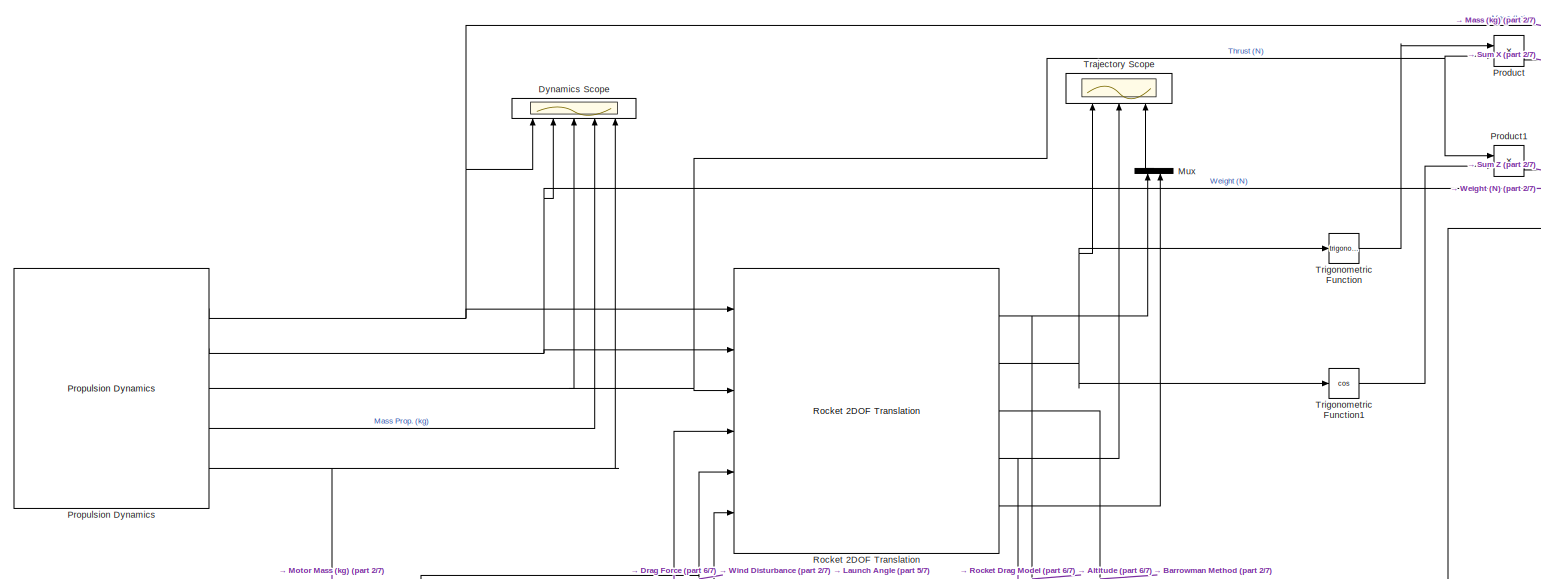
[diagram: root canvas - part 1/7, top center region]
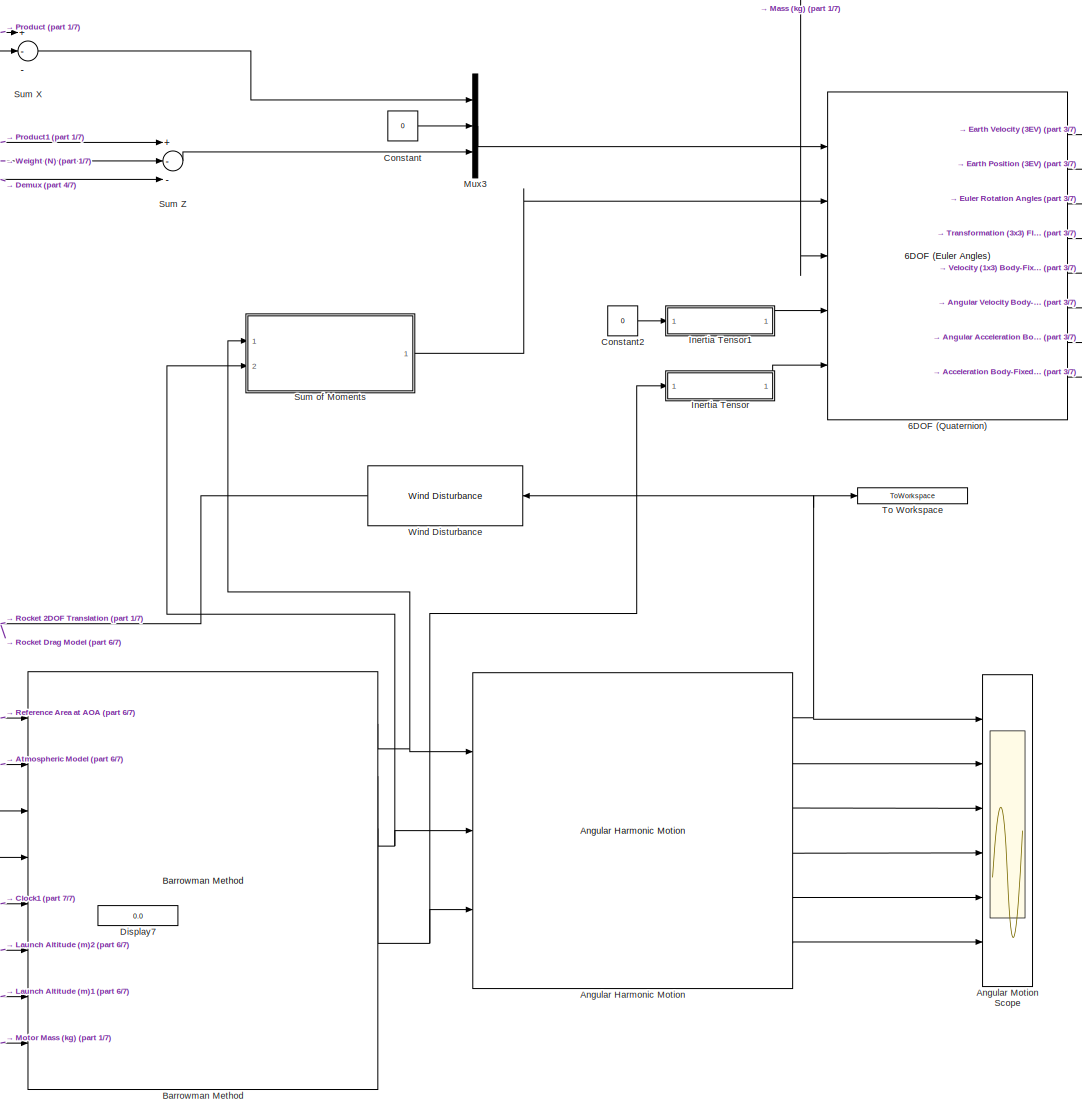
[diagram: root canvas - part 2/7, right side, full height]
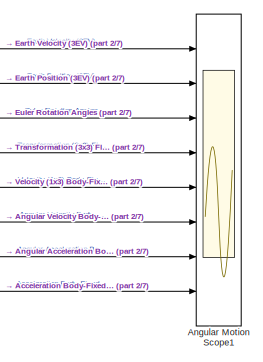
[diagram: root canvas - part 3/7, top right region]
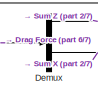
[diagram: root canvas - part 4/7, top center region]
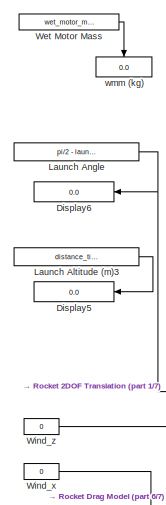
[diagram: root canvas - part 5/7, middle left region]
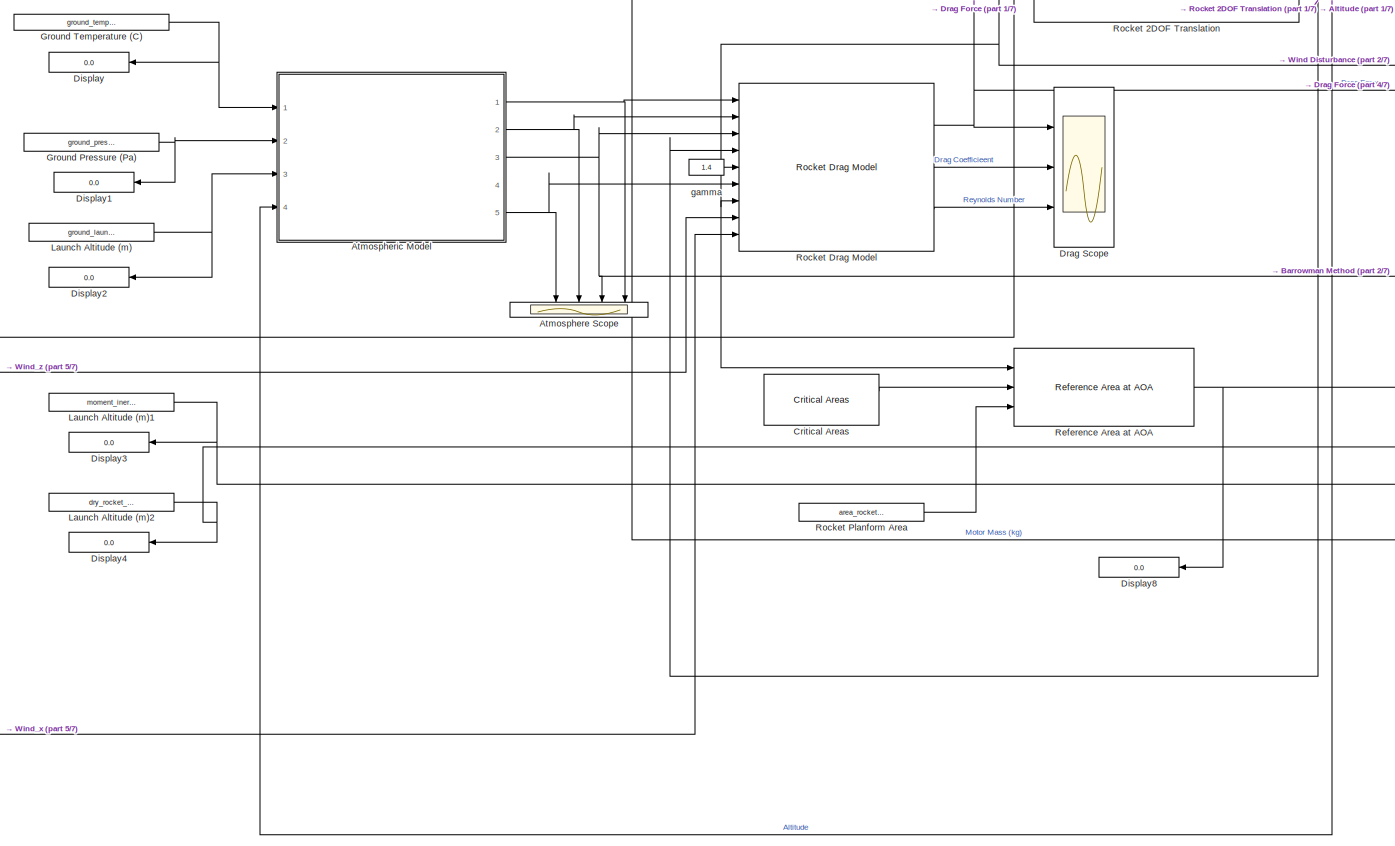
[diagram: root canvas - part 6/7, bottom left region]
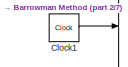
[diagram: root canvas - part 7/7, bottom center region]
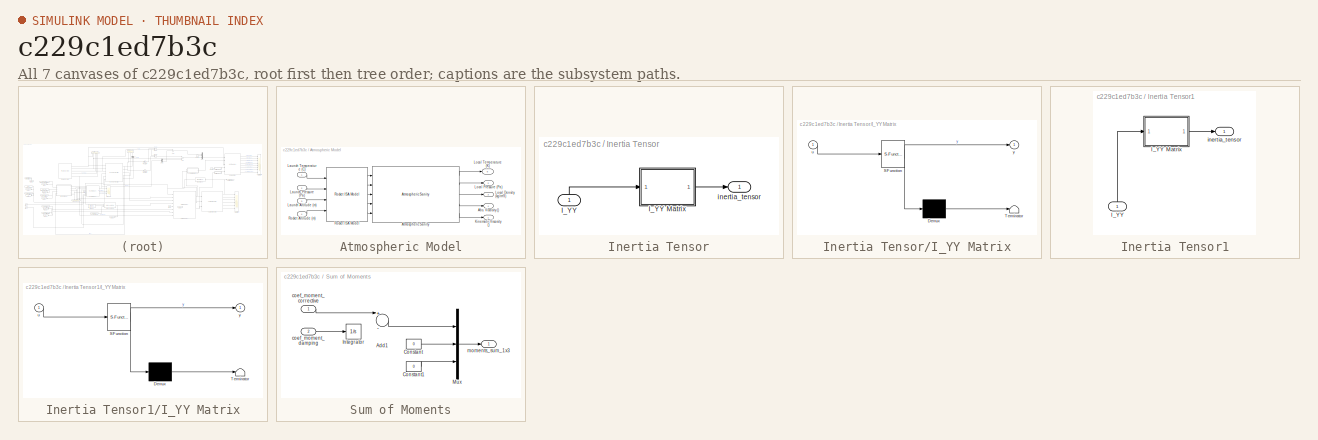
[diagram: thumbnail index - all 7 canvases of the model, root first then tree order]
MODEL slx_c229c1ed7b3c
KIND model
CONFIG AbsTol = auto
CONFIG FixedStep = 0.01
CONFIG MaxStep = auto
CONFIG MinStep = 0.01
CONFIG RelTol = 1e-3
CONFIG SampleTimeConstraint = Unconstrained
CONFIG Solver = ode3
CONFIG SolverMode = Auto
CONFIG SolverName = ode3
CONFIG StartTime = 0.0
CONFIG StopTime = 25
BLOCK [Constant]  Launch Angle
  Value = pi/2 - launch_angle
BLOCK [Reference] 6DOF (Quaternion)  REF=aerolib6dof2/6DOF (Euler Angles)
  Ports = [5, 8]
  SourceBlock = aerolib6dof2/6DOF (Euler Angles)
  SourceType = 6DOF EoM (Body Axis)
  Vm_0 = [0 0 0]
  eul_0 = [0 0.15708 0]
  inertia = eye(3)
  inertia_e = eye(3)
  inertia_f = 2*eye(3)
  k_quat = 1.0
  mass_0 = 1.0
  mass_e = 0.5
  mass_f = 2.0
  mtype = Custom Variable
  pm_0 = [0 0 0]
  rep = Quaternion
  units = Metric (MKS)
  vre_flag = off
  xme_0 = [0 0 0]
BLOCK [Reference] Angular Harmonic Motion  REF=rocket_angular_flight_library/Angular Harmonic Motion
  Ports = [3, 6]
  SourceBlock = rocket_angular_flight_library/Angular Harmonic Motion
  SourceType = SubSystem
BLOCK [Scope] Angular Motion Scope
  DataFormat = StructureWithTime
  Floating = off
  NumInputPorts = 6
  Ports = [6]
  SampleTime = 0
  SaveName = ScopeData5
  ShowLegends = off
  TimeRange = 10
  YMax = 0.0025~0.0125~0.06~0.0678327~7.7~1.125
  YMin = -0.003~-0.0075~-0.04~0.067832~6.4~1.07
BLOCK [Scope] Angular Motion Scope1
  DataFormat = StructureWithTime
  Floating = off
  NumInputPorts = 8
  Ports = [8]
  SampleTime = 0
  SaveName = ScopeData6
  ShowLegends = off
  TimeRange = 10
  YMax = 0.0025~130~0.06~0.0678327~7.7~1.125~5~5
  YMin = -0.003~-1~-0.04~0.067832~6.4~1.07~-5~-5
BLOCK [Scope] Atmosphere Scope
  DataFormat = StructureWithTime
  Floating = off
  NumInputPorts = 5
  Ports = [5]
  SampleTime = 0
  SaveName = ScopeData4
  ShowLegends = off
  YMax = 1~31.5~106391~12.355~-1.01773e-07
  YMin = -1~28.5~96258.8~11.1784~-1.12485e-07
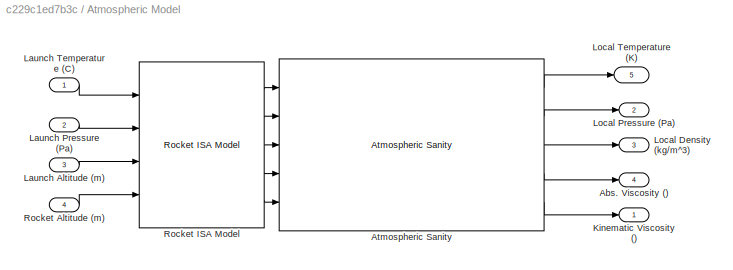
BLOCK [SubSystem] Atmospheric Model
  Ports = [4, 5]
  RequestExecContextInheritance = off
BLOCK [Outport] Atmospheric Model/Abs. Viscosity ()
  IconDisplay = Port number
  Port = 4
BLOCK [Reference] Atmospheric Model/Atmospheric Sanity  REF=rocket_isa_model_library/Atmospheric Sanity  (lib defined in slx_4b2a796e4351)
  Ports = [5, 5]
  SourceBlock = rocket_isa_model_library/Atmospheric Sanity
  SourceType = SubSystem
BLOCK [Outport] Atmospheric Model/Kinematic Viscosity ()
  IconDisplay = Port number
BLOCK [Inport] Atmospheric Model/Launch Altitude (m)
  IconDisplay = Port number
  Port = 3
BLOCK [Inport] Atmospheric Model/Launch Pressure (Pa)
  IconDisplay = Port number
  Port = 2
BLOCK [Inport] Atmospheric Model/Launch Temperature (C)
  IconDisplay = Port number
BLOCK [Outport] Atmospheric Model/Local Density (kg//m^3)
  IconDisplay = Port number
  Port = 3
BLOCK [Outport] Atmospheric Model/Local Pressure (Pa)
  IconDisplay = Port number
  Port = 2
BLOCK [Outport] Atmospheric Model/Local Temperature (K)
  IconDisplay = Port number
  Port = 5
BLOCK [Inport] Atmospheric Model/Rocket Altitude (m)
  IconDisplay = Port number
  Port = 4
BLOCK [Reference] Atmospheric Model/Rocket ISA Model  REF=rocket_isa_model_library/Rocket ISA Model  (lib defined in slx_4b2a796e4351)
  Ports = [4, 5]
  SourceBlock = rocket_isa_model_library/Rocket ISA Model
  SourceType = SubSystem
BLOCK [Reference] Barrowman Method  REF=rocket_angular_flight_library/Barrowman Method
  Ports = [8, 7]
  SourceBlock = rocket_angular_flight_library/Barrowman Method
  SourceType = SubSystem
BLOCK [Clock] Clock1
  DisplayTime = on
BLOCK [Constant] Constant
  Value = 0
BLOCK [Constant] Constant2
  Value = 0
BLOCK [Reference] Critical Areas  REF=rocket_drag_library/Critical Areas  (lib defined in slx_51275aa4cfd2)
  Ports = [0, 2]
  SourceBlock = rocket_drag_library/Critical Areas
  SourceType = SubSystem
BLOCK [Demux] Demux
  DisplayOption = bar
  Outputs = 2
  Ports = [1, 2]
BLOCK [Display] Display
  Decimation = 1
  Ports = [1]
BLOCK [Display] Display1
  Decimation = 1
  Ports = [1]
BLOCK [Display] Display2
  Decimation = 1
  Ports = [1]
BLOCK [Display] Display3
  Decimation = 1
  Ports = [1]
BLOCK [Display] Display4
  Decimation = 1
  Ports = [1]
BLOCK [Display] Display5
  Decimation = 1
  Ports = [1]
BLOCK [Display] Display6
  Decimation = 1
  Ports = [1]
BLOCK [Display] Display7
  Decimation = 1
  Ports = [1]
BLOCK [Display] Display8
  Decimation = 1
  Ports = [1]
BLOCK [Scope] Drag Scope
  DataFormat = StructureWithTime
  Floating = off
  NumInputPorts = 3
  Ports = [3]
  SampleTime = 0
  SaveName = ScopeData3
  ShowLegends = off
  YMax = 240~0.725~5e+07
  YMin = 30~0.45~1.75e+07
BLOCK [Scope] Dynamics Scope
  DataFormat = StructureWithTime
  Floating = off
  NumInputPorts = 5
  Ports = [5]
  SampleTime = 0
  SaveName = ScopeData1
  ShowLegends = off
  YMax = 139.531~1368.8~856.01~5~5
  YMin = 126.243~1238.44~774.486~-5~-5
BLOCK [Constant] Ground Pressure (Pa)
  Value = ground_pressure_ambient
BLOCK [Constant] Ground Temperature (C)
  Value = ground_temperature_ambient
BLOCK [SubSystem] Inertia Tensor
  Ports = [1, 1]
  RequestExecContextInheritance = off
BLOCK [Inport] Inertia Tensor/I_YY
  IconDisplay = Port number
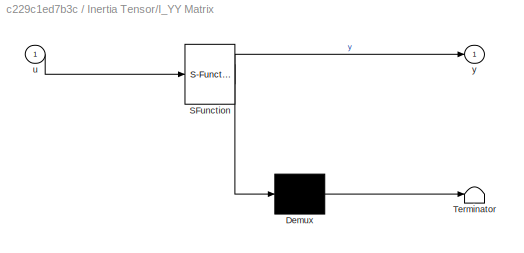
BLOCK [SubSystem] Inertia Tensor/I_YY Matrix
  ErrorFcn = Stateflow.Translate.translate
  PermitHierarchicalResolution = ExplicitOnly
  Ports = [1, 1]
  RequestExecContextInheritance = off
  SFBlockType = MATLAB Function
  TreatAsAtomicUnit = on
BLOCK [Demux] Inertia Tensor/I_YY Matrix/ Demux 
  Outputs = 1
  Ports = [1, 1]
BLOCK [S-Function] Inertia Tensor/I_YY Matrix/ SFunction 
  EnableBusSupport = on
  FunctionName = sf_sfun
  PortCounts = [1 2]
  Ports = [1, 2]
  Tag = Stateflow S-Function RocketFlight_6DOF 2
BLOCK [Terminator] Inertia Tensor/I_YY Matrix/ Terminator 
BLOCK [Inport] Inertia Tensor/I_YY Matrix/u
  IconDisplay = Port number
BLOCK [Outport] Inertia Tensor/I_YY Matrix/y
  IconDisplay = Port number
BLOCK [Outport] Inertia Tensor/inertia_tensor
  IconDisplay = Port number
BLOCK [SubSystem] Inertia Tensor1
  Ports = [1, 1]
  RequestExecContextInheritance = off
BLOCK [Inport] Inertia Tensor1/I_YY
  IconDisplay = Port number
BLOCK [SubSystem] Inertia Tensor1/I_YY Matrix
  ErrorFcn = Stateflow.Translate.translate
  PermitHierarchicalResolution = ExplicitOnly
  Ports = [1, 1]
  RequestExecContextInheritance = off
  SFBlockType = MATLAB Function
  TreatAsAtomicUnit = on
BLOCK [Demux] Inertia Tensor1/I_YY Matrix/ Demux 
  Outputs = 1
  Ports = [1, 1]
BLOCK [S-Function] Inertia Tensor1/I_YY Matrix/ SFunction 
  EnableBusSupport = on
  FunctionName = sf_sfun
  PortCounts = [1 2]
  Ports = [1, 2]
  Tag = Stateflow S-Function RocketFlight_6DOF 1
BLOCK [Terminator] Inertia Tensor1/I_YY Matrix/ Terminator 
BLOCK [Inport] Inertia Tensor1/I_YY Matrix/u
  IconDisplay = Port number
BLOCK [Outport] Inertia Tensor1/I_YY Matrix/y
  IconDisplay = Port number
BLOCK [Outport] Inertia Tensor1/inertia_tensor
  IconDisplay = Port number
BLOCK [Constant] Launch Altitude (m)
  Value = ground_launch_altitude
BLOCK [Constant] Launch Altitude (m)1
  Value = moment_inertia_rocket
BLOCK [Constant] Launch Altitude (m)2
  Value = dry_rocket_cog
BLOCK [Constant] Launch Altitude (m)3
  Value = distance_tip_to_COP
BLOCK [Mux] Mux
  DisplayOption = bar
  Inputs = 2
  Ports = [2, 1]
BLOCK [Mux] Mux3
  DisplayOption = bar
  Inputs = 3
  Ports = [3, 1]
BLOCK [Product] Product
  InputSameDT = off
  OutDataTypeStr = Inherit: Inherit via internal rule
  Ports = [2, 1]
  RndMeth = Floor
  SaturateOnIntegerOverflow = off
BLOCK [Product] Product1
  InputSameDT = off
  OutDataTypeStr = Inherit: Inherit via internal rule
  Ports = [2, 1]
  RndMeth = Floor
  SaturateOnIntegerOverflow = off
BLOCK [Reference] Propulsion Dynamics  REF=rocket_dynamic_data_library/Propulsion Dynamics  (lib defined in slx_58be5b8ac4f4)
  Ports = [0, 5]
  SourceBlock = rocket_dynamic_data_library/Propulsion Dynamics
  SourceType = SubSystem
BLOCK [Reference] Reference Area at AOA  REF=rocket_angular_flight_library/Reference Area at AOA
  Ports = [3, 1]
  SourceBlock = rocket_angular_flight_library/Reference Area at AOA
  SourceType = SubSystem
BLOCK [Reference] Rocket 2DOF Translation  REF=rocket_vertical_flight_library/Rocket 2DOF Translation  (lib defined in slx_f0a917acac91)
  Ports = [6, 5]
  SourceBlock = rocket_vertical_flight_library/Rocket 2DOF Translation
  SourceType = SubSystem
BLOCK [Reference] Rocket Drag Model  REF=rocket_drag_library/Rocket Drag Model  (lib defined in slx_51275aa4cfd2)
  Ports = [9, 3]
  SourceBlock = rocket_drag_library/Rocket Drag Model
  SourceType = SubSystem
BLOCK [Constant] Rocket Planform Area
  Value = area_rocket_planform
BLOCK [Sum] Sum X
  InputSameDT = off
  Inputs = +--
  OutDataTypeStr = Inherit: Inherit via internal rule
  Ports = [3, 1]
  SaturateOnIntegerOverflow = off
BLOCK [Sum] Sum Z
  InputSameDT = off
  Inputs = +--
  OutDataTypeStr = Inherit: Inherit via internal rule
  Ports = [3, 1]
  SaturateOnIntegerOverflow = off
BLOCK [SubSystem] Sum of Moments
  Ports = [2, 1]
  RequestExecContextInheritance = off
BLOCK [Sum] Sum of Moments/Add1
  InputSameDT = off
  Inputs = +-
  OutDataTypeStr = Inherit: Inherit via internal rule
  Ports = [2, 1]
  SaturateOnIntegerOverflow = off
BLOCK [Constant] Sum of Moments/Constant
  Value = 0
BLOCK [Constant] Sum of Moments/Constant1
  Value = 0
BLOCK [Integrator] Sum of Moments/Integrator
  Ports = [1, 1]
BLOCK [Mux] Sum of Moments/Mux
  DisplayOption = bar
  Inputs = 3
  Ports = [3, 1]
BLOCK [Inport] Sum of Moments/coef_moment_corrective
  IconDisplay = Port number
BLOCK [Inport] Sum of Moments/coef_moment_damping
  IconDisplay = Port number
  Port = 2
BLOCK [Outport] Sum of Moments/moments_sum_1x3
  IconDisplay = Port number
BLOCK [ToWorkspace] To Workspace
  FixptAsFi = on
  MaxDataPoints = inf
  Ports = [1]
  SampleTime = -1
  Save2DSignal = 3-D array (concatenate along third dimension)
  VariableName = angular_position
BLOCK [Scope] Trajectory Scope
  DataFormat = StructureWithTime
  Floating = off
  NumInputPorts = 3
  Ports = [3]
  SampleTime = 0
  SaveName = ScopeData7
  ShowLegends = off
  YMax = 0.145~525~1
  YMin = 0.04~25~-1
BLOCK [Trigonometry] Trigonometric Function
  Ports = [1, 1]
BLOCK [Trigonometry] Trigonometric Function1
  Operator = cos
  Ports = [1, 1]
BLOCK [Constant] Wet Motor Mass
  Value = wet_motor_mass
BLOCK [Reference] Wind Disturbance  REF=rocket_angular_flight_library/Wind Disturbance
  Ports = [1, 1]
  SourceBlock = rocket_angular_flight_library/Wind Disturbance
  SourceType = SubSystem
BLOCK [Constant] Wind_x
  Value = 0
BLOCK [Constant] Wind_z
  Value = 0
BLOCK [Constant] gamma
  Value = 1.4
BLOCK [Display] wmm (kg)
  Decimation = 1
  Ports = [1]
NET  Launch Angle:1 -> Display6:1, Rocket 2DOF Translation:6
LINE 6DOF (Quaternion):1 -> Angular Motion Scope1:1
LINE 6DOF (Quaternion):2 -> Angular Motion Scope1:2
LINE 6DOF (Quaternion):3 -> Angular Motion Scope1:3
LINE 6DOF (Quaternion):4 -> Angular Motion Scope1:4
LINE 6DOF (Quaternion):5 -> Angular Motion Scope1:5
LINE 6DOF (Quaternion):6 -> Angular Motion Scope1:6
LINE 6DOF (Quaternion):7 -> Angular Motion Scope1:7
LINE 6DOF (Quaternion):8 -> Angular Motion Scope1:8
NET Angular Harmonic Motion:1 -> Angular Motion Scope:1, To Workspace:1, Wind Disturbance:1
LINE Angular Harmonic Motion:2 -> Angular Motion Scope:2
LINE Angular Harmonic Motion:3 -> Angular Motion Scope:3
LINE Angular Harmonic Motion:4 -> Angular Motion Scope:4
LINE Angular Harmonic Motion:5 -> Angular Motion Scope:5
LINE Angular Harmonic Motion:6 -> Angular Motion Scope:6
LINE Atmospheric Model/Atmospheric Sanity:1 -> Atmospheric Model/Local Temperature (K):1
LINE Atmospheric Model/Atmospheric Sanity:2 -> Atmospheric Model/Local Pressure (Pa):1
LINE Atmospheric Model/Atmospheric Sanity:3 -> Atmospheric Model/Local Density (kg//m^3):1
LINE Atmospheric Model/Atmospheric Sanity:4 -> Atmospheric Model/Abs. Viscosity ():1
LINE Atmospheric Model/Atmospheric Sanity:5 -> Atmospheric Model/Kinematic Viscosity ():1
LINE Atmospheric Model/Launch Altitude (m):1 -> Atmospheric Model/Rocket ISA Model:3
LINE Atmospheric Model/Launch Pressure (Pa):1 -> Atmospheric Model/Rocket ISA Model:2
LINE Atmospheric Model/Launch Temperature (C):1 -> Atmospheric Model/Rocket ISA Model:1
LINE Atmospheric Model/Rocket Altitude (m):1 -> Atmospheric Model/Rocket ISA Model:4
LINE Atmospheric Model/Rocket ISA Model:1 -> Atmospheric Model/Atmospheric Sanity:1
LINE Atmospheric Model/Rocket ISA Model:2 -> Atmospheric Model/Atmospheric Sanity:2
LINE Atmospheric Model/Rocket ISA Model:3 -> Atmospheric Model/Atmospheric Sanity:3
LINE Atmospheric Model/Rocket ISA Model:4 -> Atmospheric Model/Atmospheric Sanity:4
LINE Atmospheric Model/Rocket ISA Model:5 -> Atmospheric Model/Atmospheric Sanity:5
NET Atmospheric Model:1 -> Atmosphere Scope:5, Rocket Drag Model:1
NET Atmospheric Model:2 -> Atmosphere Scope:3, Rocket Drag Model:2
NET Atmospheric Model:3 -> Atmosphere Scope:4, Barrowman Method:2, Rocket Drag Model:3
NET Atmospheric Model:5 -> Atmosphere Scope:2, Rocket Drag Model:6
NET Barrowman Method:1 -> Angular Harmonic Motion:1, Sum of Moments:1
NET Barrowman Method:2 -> Angular Harmonic Motion:2, Sum of Moments:2
NET Barrowman Method:3 -> Angular Harmonic Motion:3, Inertia Tensor:1
LINE Clock1:1 -> Barrowman Method:5
LINE Constant2:1 -> Inertia Tensor1:1
LINE Constant:1 -> Mux3:2
LINE Critical Areas:1 -> Reference Area at AOA:2
LINE Demux:1 -> Sum Z:3
LINE Demux:2 -> Sum X:2
NET Ground Pressure (Pa):1 -> Atmospheric Model:2, Display1:1
NET Ground Temperature (C):1 -> Atmospheric Model:1, Display:1
LINE Inertia Tensor/I_YY Matrix:1 -> Inertia Tensor/inertia_tensor:1
LINE Inertia Tensor/I_YY:1 -> Inertia Tensor/I_YY Matrix:1
LINE Inertia Tensor1/I_YY Matrix:1 -> Inertia Tensor1/inertia_tensor:1
LINE Inertia Tensor1/I_YY:1 -> Inertia Tensor1/I_YY Matrix:1
LINE Inertia Tensor1:1 -> 6DOF (Quaternion):4
LINE Inertia Tensor:1 -> 6DOF (Quaternion):5
NET Launch Altitude (m)1:1 -> Barrowman Method:7, Display3:1
NET Launch Altitude (m)2:1 -> Barrowman Method:6, Display4:1
LINE Launch Altitude (m)3:1 -> Display5:1
NET Launch Altitude (m):1 -> Atmospheric Model:3, Display2:1
LINE Mux3:1 -> 6DOF (Quaternion):1
LINE Mux:1 -> Trajectory Scope:3
LINE Product1:1 -> Sum Z:1
LINE Product:1 -> Sum X:1
NET Propulsion Dynamics:1 -> 6DOF (Quaternion):3, Dynamics Scope:1, Rocket 2DOF Translation:1
NET Propulsion Dynamics:2 -> Dynamics Scope:2, Rocket 2DOF Translation:2, Sum Z:2
NET Propulsion Dynamics:3 -> Dynamics Scope:3, Product1:1, Product:2, Rocket 2DOF Translation:3
LINE Propulsion Dynamics:4 -> Dynamics Scope:4
NET Propulsion Dynamics:5 -> Barrowman Method:8, Dynamics Scope:5
NET Reference Area at AOA:1 -> Barrowman Method:4, Display8:1
NET Rocket 2DOF Translation:1 -> Atmospheric Model:4, Mux:1
NET Rocket 2DOF Translation:2 -> Trajectory Scope:1, Trigonometric Function1:1, Trigonometric Function:1
LINE Rocket 2DOF Translation:3 -> Barrowman Method:3
NET Rocket 2DOF Translation:4 -> Rocket Drag Model:4, Trajectory Scope:2
LINE Rocket 2DOF Translation:5 -> Mux:2
NET Rocket Drag Model:1 -> Demux:1, Drag Scope:1, Rocket 2DOF Translation:4
LINE Rocket Drag Model:2 -> Drag Scope:2
LINE Rocket Drag Model:3 -> Drag Scope:3
LINE Rocket Planform Area:1 -> Reference Area at AOA:3
LINE Sum X:1 -> Mux3:1
LINE Sum Z:1 -> Mux3:3
LINE Sum of Moments/Add1:1 -> Sum of Moments/Mux:1
LINE Sum of Moments/Constant1:1 -> Sum of Moments/Mux:3
LINE Sum of Moments/Constant:1 -> Sum of Moments/Mux:2
LINE Sum of Moments/Mux:1 -> Sum of Moments/moments_sum_1x3:1
LINE Sum of Moments/coef_moment_corrective:1 -> Sum of Moments/Add1:1
LINE Sum of Moments/coef_moment_damping:1 -> Sum of Moments/Integrator:1
LINE Sum of Moments:1 -> 6DOF (Quaternion):2
LINE Trigonometric Function1:1 -> Product1:2
LINE Trigonometric Function:1 -> Product:1
LINE Wet Motor Mass:1 -> wmm (kg):1
NET Wind Disturbance:1 -> Barrowman Method:1, Reference Area at AOA:1, Rocket 2DOF Translation:5, Rocket Drag Model:7
LINE Wind_x:1 -> Rocket Drag Model:9
LINE Wind_z:1 -> Rocket Drag Model:8
LINE gamma:1 -> Rocket Drag Model:5
note: NET lines group one-source signal fan-out (src -> all destinations, sorted); 1:1 wires keep LINE
